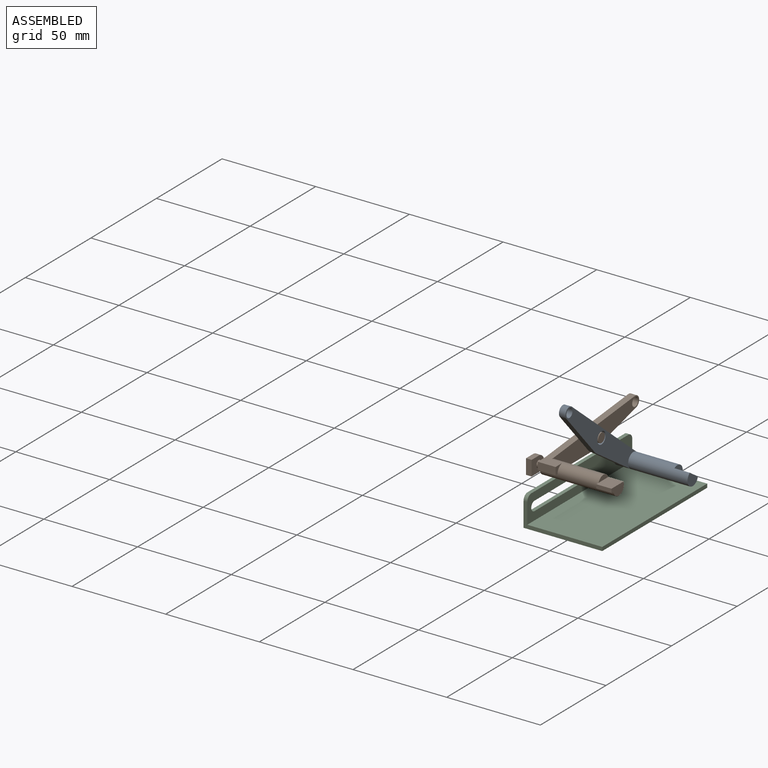
[diagram: assembled view]
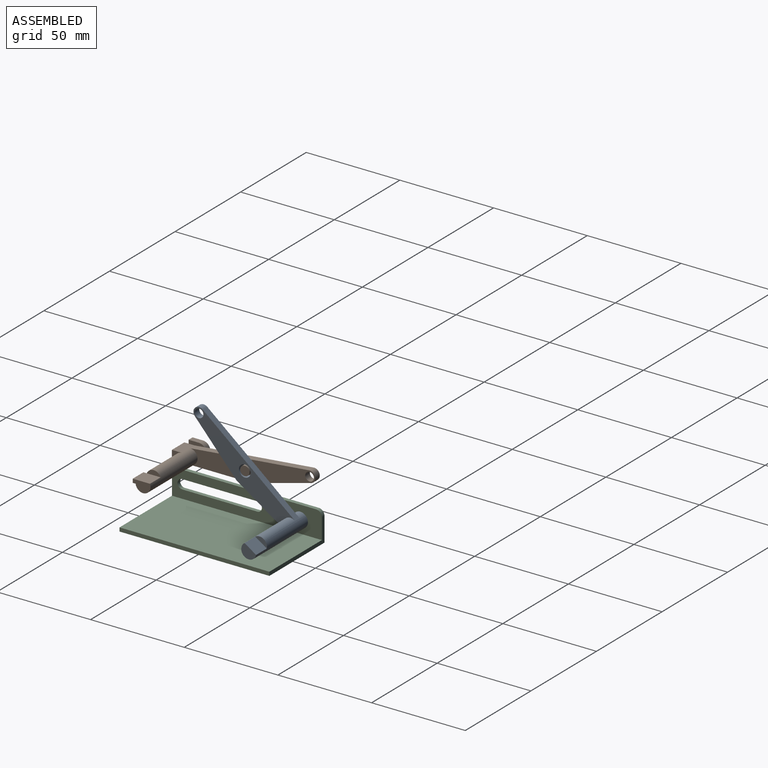
[diagram: assembled view, second angle]
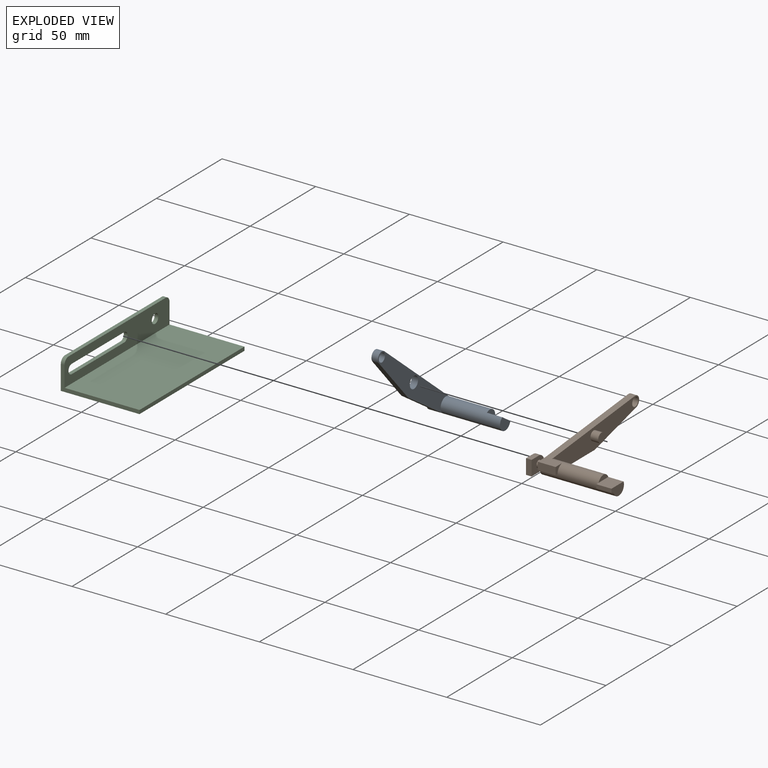
[diagram: exploded view]
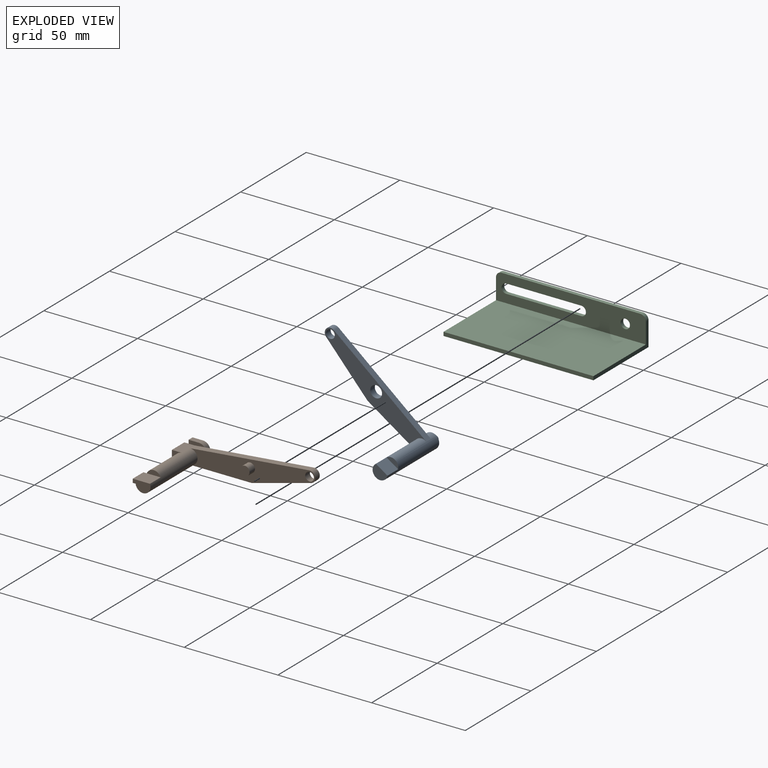
[diagram: exploded view, second angle]
ASSEMBLY  parts=3 mates=2
PART A: 15 faces, bbox 42x70.5x14.3 mm
  f0: plane 8x5.5mm, normal (1,0,0), area 36.8mm2, adj f1,f5
  f1: cylinder r=4mm len=39.35mm, axis (1,0,0), area 866.2mm2, adj f0,f4,f5,f6,f7,f11,f13,f14
  f2: cylinder r=1.85mm len=3.7mm, axis (-1,0,0), area 30.8mm2, adj f3,f4
  f3: plane 3.7x3.7mm, normal (-1,0,0), area 10.8mm2, adj f2
  f4: plane 8x8mm, normal (-1,0,0), area 39.5mm2, adj f1,f2
  f5: plane 8.15x7.42mm, normal (0,0,1), area 60.4mm2, adj f0,f1,f6
  f6: plane 7.42x2.5mm, normal (1,0,0), area 13.4mm2, adj f1,f5
  f7: plane 63.6x6.33mm, normal (0,0.1,1), area 223.7mm2, adj f1,f8,f13,f14
  f8: cylinder r=3mm len=5.9mm, axis (-1,0,0), area 31.3mm2, adj f7,f9,f13,f14
  f9: plane 32.19x8.42mm, normal (0,-0.25,-0.97), area 116.4mm2, adj f8,f11,f13,f14
  f10: cylinder r=2.32mm len=4.65mm, axis (-1,0,0), area 51.1mm2, adj f13,f14
  f11: plane 32.07x3.5mm, normal (0,0,-1), area 112.3mm2, adj f1,f9,f13,f14
  f12: cylinder r=3.15mm len=6.3mm, axis (-1,0,0), area 69.3mm2, adj f13,f14
  f13: plane 66.9x14.33mm, normal (1,0,0), area 521.6mm2, adj f1,f7,f8,f9,f10,f11,f12
  f14: plane 66.9x14.33mm, normal (-1,0,0), area 521.6mm2, adj f1,f7,f8,f9,f10,f11,f12
PART B: 27 faces, bbox 45.7x72.3x14.3 mm
  f0: cylinder r=4mm len=39.35mm, axis (1,0,0), area 791.3mm2, adj f1,f3,f4,f5,f12,f13,f15,f16
  f1: plane 9.5x5.5mm, normal (1,0,0), area 40mm2, adj f0,f4,f17,f18
  f2: cylinder r=1.85mm len=3.7mm, axis (-1,0,0), area 38.4mm2, adj f3,f11
  f3: plane 72.3x14.33mm, normal (-1,0,0), area 605.8mm2, adj f0,f2,f12,f14,f15,f19,f20,f21
  f4: plane 9.21x8.15mm, normal (0,0,1), area 75mm2, adj f0,f1,f5,f16,f17
  f5: plane 7.42x2.5mm, normal (1,0,0), area 13.4mm2, adj f0,f4
  f6: plane 8x3mm, normal (0,-1,0), area 24mm2, adj f7,f9,f10,f11
  f7: plane 5.5x3mm, normal (0,0,1), area 16.5mm2, adj f6,f8,f10,f11
  f8: cylinder r=4mm len=8mm, axis (1,0,0), area 37.7mm2, adj f7,f9,f10,f11
  f9: plane 5.5x3mm, normal (0,0,-1), area 16.5mm2, adj f6,f8,f10,f11
  f10: plane 9.5x8mm, normal (-1,0,0), area 69.1mm2, adj f6,f7,f8,f9
  f11: plane 9.5x8mm, normal (1,0,0), area 58.4mm2, adj f2,f6,f7,f8,f9
  f12: plane 9.5x1.5mm, normal (0,0,-1), area 14.3mm2, adj f0,f3,f13,f14
  f13: plane 5.5x4mm, normal (1,0,0), area 9.4mm2, adj f0,f12,f14,f15
  f14: plane 9.5x4mm, normal (0,-1,0), area 38mm2, adj f3,f12,f13,f15
  f15: plane 9.5x5.5mm, normal (0,0,1), area 52.2mm2, adj f0,f3,f13,f14,f19
  f16: plane 2x1.79mm, normal (-1,0,0), area 3.1mm2, adj f0,f4,f17,f18
  f17: plane 8.15x2mm, normal (0,-1,0), area 16.3mm2, adj f1,f4,f16,f18
  f18: plane 8.15x1.53mm, normal (0,0,-1), area 12.5mm2, adj f0,f1,f16,f17
  f19: plane 63.5x6.31mm, normal (0,-0.1,1), area 223.3mm2, adj f3,f15,f20,f24
  f20: cylinder r=3mm len=5.99mm, axis (-1,0,0), area 33mm2, adj f3,f19,f21,f24
  f21: plane 31.23x8.34mm, normal (0,0.26,-0.97), area 113.2mm2, adj f3,f20,f23,f24
  f22: cylinder r=2.32mm len=4.65mm, axis (-1,0,0), area 51.1mm2, adj f3,f24
  f23: plane 32.86x3.5mm, normal (0,0,-1), area 115mm2, adj f0,f3,f21,f24
  f24: plane 66.8x14.33mm, normal (1,0,0), area 537.2mm2, adj f0,f19,f20,f21,f22,f23,f25
  f25: cylinder r=2.5mm len=5mm, axis (-1,0,0), area 65.2mm2, adj f24,f26
  f26: plane 5x5mm, normal (1,0,0), area 19.6mm2, adj f25
PART C: 15 faces, bbox 42x80x16 mm
  f0: plane 80x16mm, normal (-1,0,0), area 1036.9mm2, adj f4,f5,f6,f7,f8,f9,f10,f11
  f1: plane 80x14mm, normal (1,0,0), area 876.9mm2, adj f2,f4,f5,f7,f8,f9,f10,f11
  f2: plane 80x40mm, normal (0,0,1), area 3200mm2, adj f1,f3,f4,f5
  f3: plane 80x2mm, normal (1,0,0), area 160mm2, adj f2,f4,f5,f6
  f4: plane 42x13mm, normal (0,1,0), area 106mm2, adj f0,f1,f2,f3,f6,f8
  f5: plane 42x13mm, normal (0,-1,0), area 106mm2, adj f0,f1,f2,f3,f6,f9
  f6: plane 80x42mm, normal (0,0,-1), area 3360mm2, adj f0,f3,f4,f5
  f7: plane 74x2mm, normal (0,0,1), area 148mm2, adj f0,f1,f8,f9
  f8: cylinder r=3mm len=3mm, axis (1,0,0), area 9.4mm2, adj f0,f1,f4,f7
  f9: cylinder r=3mm len=3mm, axis (-1,0,0), area 9.4mm2, adj f0,f1,f5,f7
  f10: cylinder r=2.5mm len=5mm, axis (1,0,0), area 31.4mm2, adj f0,f1
  f11: plane 40x2mm, normal (0,0,-1), area 80mm2, adj f0,f1,f12,f14
  f12: cylinder r=2.5mm len=5mm, axis (1,0,0), area 15.7mm2, adj f0,f1,f11,f13
  f13: plane 40x2mm, normal (0,0,1), area 80mm2, adj f0,f1,f12,f14
  f14: cylinder r=2.5mm len=5mm, axis (1,0,0), area 15.7mm2, adj f0,f1,f11,f13
PLACE A rot(axis=(-1,0,0),33.7deg) t=(20.94,-0.02,9.82)mm
PLACE B rot(axis=(-1,0,0),0deg) t=(20.94,7.15,9.08)mm
PLACE C t=(20.94,0.1,-7.8)mm fixed
MATE revolute B.f25 <-> A.f12  axis (1,0,0) through (-10.76,4.8,21.27)mm
MATE revolute C.f10 <-> A.f1  axis (-1,0,0) through (-21.06,29.1,1.2)mm
